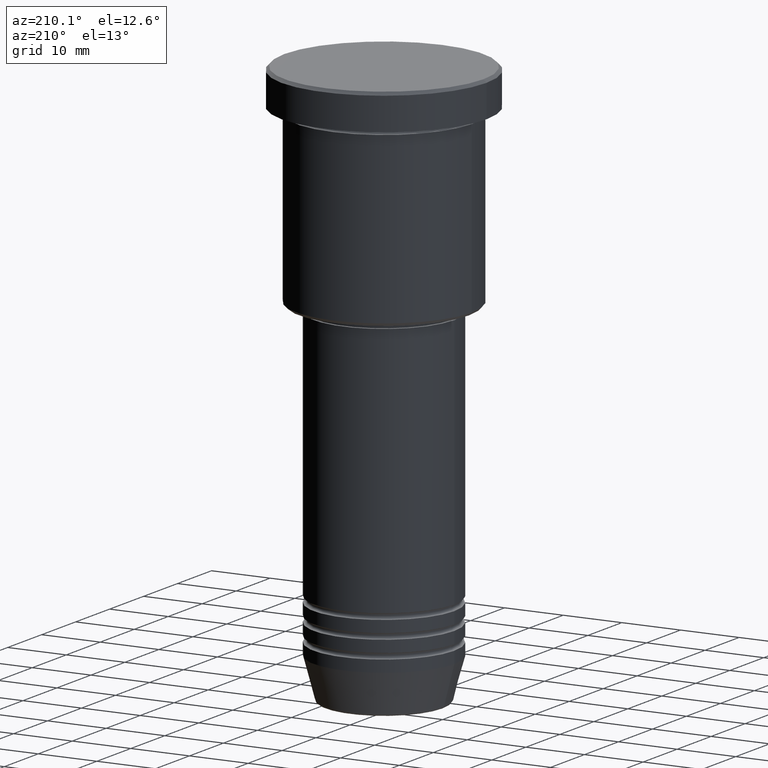
[diagram: clean part render]
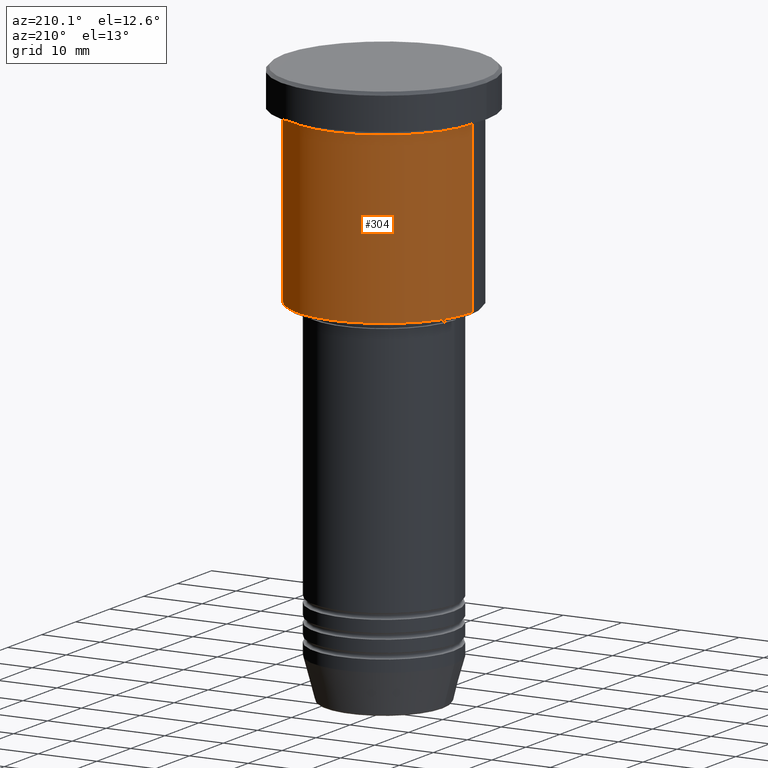
[diagram: same view with one face highlighted and labeled with its STEP entity id]
A machine part, auxiliary view. The second image highlights one B-rep face of the part: STEP entity #304.
In plain terms, the highlighted cylindrical surface (partial cylindrical patch) has radius 15 mm, axis along (-0, -0, 1).
Its self-contained STEP definition (entity closure, byte-faithful):
#2 = ORIENTED_EDGE ( 'NONE', *, *, #320, .F. ) ;
#32 = VERTEX_POINT ( 'NONE', #444 ) ;
#60 = DIRECTION ( 'NONE',  ( -0.000000000000000000, -0.000000000000000000, 1.000000000000000000 ) ) ;
#63 = ORIENTED_EDGE ( 'NONE', *, *, #465, .T. ) ;
#65 = DIRECTION ( 'NONE',  ( 1.000000000000000000, 0.000000000000000000, 0.000000000000000000 ) ) ;
#77 = EDGE_LOOP ( 'NONE', ( #693, #63, #2, #132 ) ) ;
#86 = DIRECTION ( 'NONE',  ( 1.000000000000000000, 0.000000000000000000, 0.000000000000000000 ) ) ;
#132 = ORIENTED_EDGE ( 'NONE', *, *, #241, .F. ) ;
#143 = CARTESIAN_POINT ( 'NONE',  ( 0.000000000000000000, 0.000000000000000000, -6.999999999999995559 ) ) ;
#149 = DIRECTION ( 'NONE',  ( -0.000000000000000000, -0.000000000000000000, 1.000000000000000000 ) ) ;
#185 = CARTESIAN_POINT ( 'NONE',  ( -15.00000000000000000, 1.836970198721029589E-15, -6.999999999999995559 ) ) ;
#241 = EDGE_CURVE ( 'NONE', #1052, #32, #273, .T. ) ;
#273 = LINE ( 'NONE', #961, #604 ) ;
#304 = ADVANCED_FACE ( 'NONE', ( #995 ), #756, .T. ) ;
#320 = EDGE_CURVE ( 'NONE', #32, #513, #762, .T. ) ;
#338 = AXIS2_PLACEMENT_3D ( 'NONE', #143, #346, #65 ) ;
#345 = DIRECTION ( 'NONE',  ( -1.000000000000000000, 0.000000000000000000, 0.000000000000000000 ) ) ;
#346 = DIRECTION ( 'NONE',  ( -0.000000000000000000, -0.000000000000000000, 1.000000000000000000 ) ) ;
#444 = CARTESIAN_POINT ( 'NONE',  ( 15.00000000000000000, 0.000000000000000000, -6.999999999999995559 ) ) ;
#465 = EDGE_CURVE ( 'NONE', #705, #513, #791, .T. ) ;
#508 = EDGE_CURVE ( 'NONE', #1052, #705, #1178, .T. ) ;
#513 = VERTEX_POINT ( 'NONE', #185 ) ;
#572 = AXIS2_PLACEMENT_3D ( 'NONE', #1165, #600, #345 ) ;
#600 = DIRECTION ( 'NONE',  ( -0.000000000000000000, -0.000000000000000000, 1.000000000000000000 ) ) ;
#604 = VECTOR ( 'NONE', #149, 1000.000000000000000 ) ;
#672 = DIRECTION ( 'NONE',  ( -0.000000000000000000, -0.000000000000000000, 1.000000000000000000 ) ) ;
#678 = CARTESIAN_POINT ( 'NONE',  ( -15.00000000000000000, 1.836970198721029589E-15, -35.50000000000001421 ) ) ;
#693 = ORIENTED_EDGE ( 'NONE', *, *, #508, .T. ) ;
#705 = VERTEX_POINT ( 'NONE', #678 ) ;
#756 = CYLINDRICAL_SURFACE ( 'NONE', #1045, 15.00000000000000000 ) ;
#762 = CIRCLE ( 'NONE', #338, 15.00000000000000000 ) ;
#791 = LINE ( 'NONE', #1078, #1109 ) ;
#961 = CARTESIAN_POINT ( 'NONE',  ( 15.00000000000000000, 0.000000000000000000, 0.000000000000000000 ) ) ;
#995 = FACE_OUTER_BOUND ( 'NONE', #77, .T. ) ;
#1045 = AXIS2_PLACEMENT_3D ( 'NONE', #1120, #672, #86 ) ;
#1052 = VERTEX_POINT ( 'NONE', #1066 ) ;
#1066 = CARTESIAN_POINT ( 'NONE',  ( 15.00000000000000000, 0.000000000000000000, -35.50000000000001421 ) ) ;
#1078 = CARTESIAN_POINT ( 'NONE',  ( -15.00000000000000000, 1.836970198721029589E-15, 0.000000000000000000 ) ) ;
#1109 = VECTOR ( 'NONE', #60, 1000.000000000000000 ) ;
#1120 = CARTESIAN_POINT ( 'NONE',  ( 0.000000000000000000, 0.000000000000000000, 0.000000000000000000 ) ) ;
#1165 = CARTESIAN_POINT ( 'NONE',  ( 0.000000000000000000, 0.000000000000000000, -35.50000000000001421 ) ) ;
#1178 = CIRCLE ( 'NONE', #572, 15.00000000000000000 ) ;